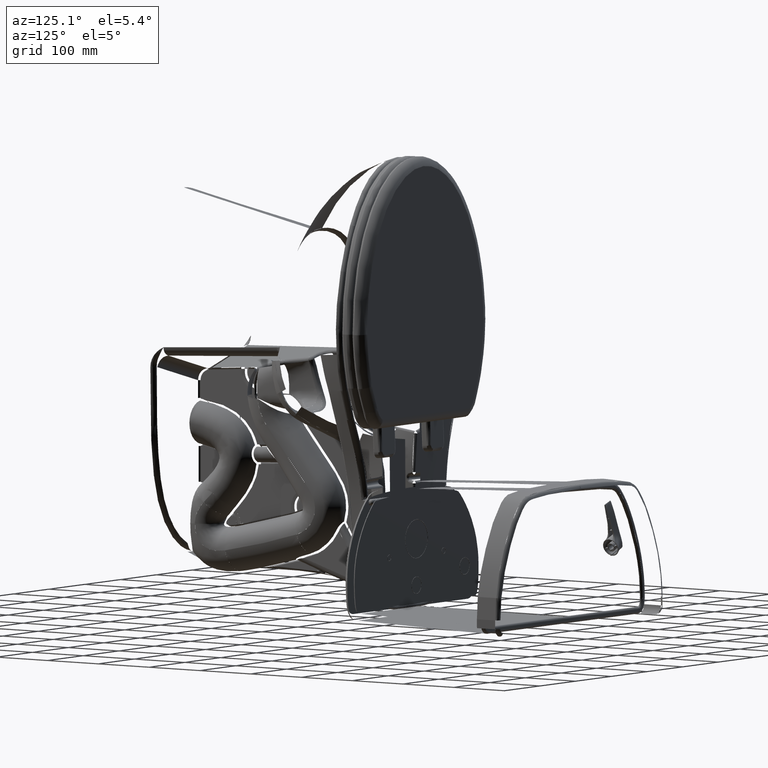
[diagram: clean part render]
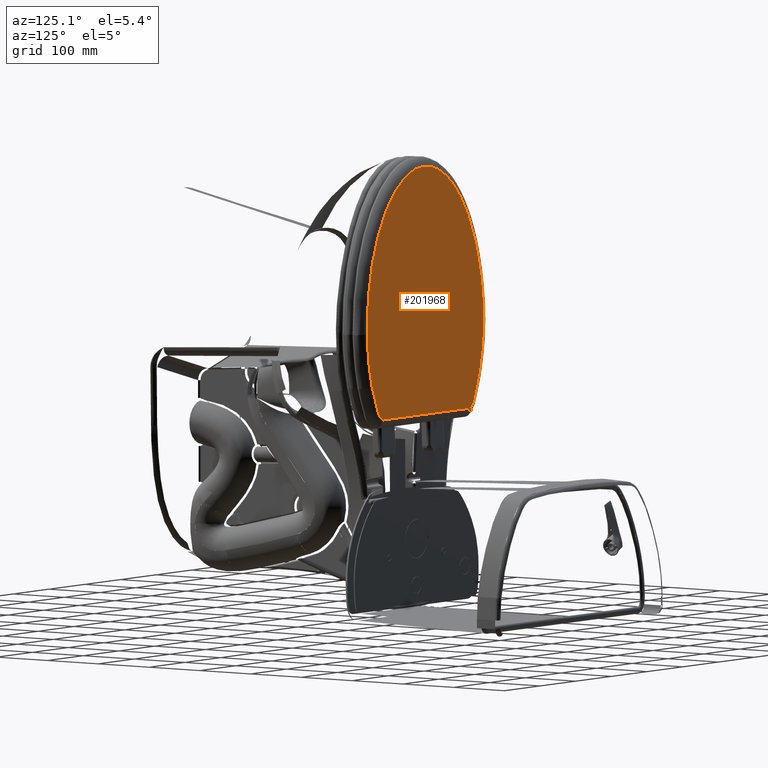
[diagram: same view with one face highlighted and labeled with its STEP entity id]
A machine part, auxiliary view. The second image highlights one B-rep face of the part: STEP entity #201968.
In plain terms, the highlighted planar face has unit normal (-0, -0.9999, -0.0102).
Its self-contained STEP definition (entity closure, byte-faithful):
#1264 =( BOUNDED_CURVE ( )  B_SPLINE_CURVE ( 3, ( #233270, #126699, #51369, #217350 ),
 .UNSPECIFIED., .F., .F. ) 
 B_SPLINE_CURVE_WITH_KNOTS ( ( 4, 4 ),
 ( 0.9997667374043239800, 1.000000000000000000 ),
 .UNSPECIFIED. ) 
 CURVE ( )  GEOMETRIC_REPRESENTATION_ITEM ( )  RATIONAL_B_SPLINE_CURVE ( ( 1.000000000000000000, 0.9999999996940360800, 0.9999999996940360800, 1.000000000000000000 ) ) 
 REPRESENTATION_ITEM ( '' )  );
#1397 = B_SPLINE_CURVE_WITH_KNOTS ( 'NONE', 3,
 ( #148863, #145712, #2817, #167127 ),
 .UNSPECIFIED., .F., .F.,
 ( 4, 4 ),
 ( 0.0000000000000000000, 1.000000000000000000 ),
 .UNSPECIFIED. ) ;
#1868 = EDGE_CURVE ( 'NONE', #143346, #15801, #88332, .T. ) ;
#2817 = CARTESIAN_POINT ( 'NONE',  ( 5.769628448364277200, 2.568445771210066100, 19.02174567300068700 ) ) ;
#3020 = CARTESIAN_POINT ( 'NONE',  ( 5.952506107053210400, 2.052552126661968000, 19.01648802116910300 ) ) ;
#3877 = CARTESIAN_POINT ( 'NONE',  ( 5.083454191896861700, -7.574328426499317100, 18.91846512556632800 ) ) ;
#4453 = EDGE_CURVE ( 'NONE', #36163, #204192, #15546, .T. ) ;
#4998 = ORIENTED_EDGE ( 'NONE', *, *, #85081, .F. ) ;
#5488 = CARTESIAN_POINT ( 'NONE',  ( -0.8032442826013103100, -11.44417204838209700, 18.87912856532446400 ) ) ;
#6061 = CARTESIAN_POINT ( 'NONE',  ( -5.348384407720300400, 3.568541212442836400, 19.03206473020582500 ) ) ;
#6266 = CARTESIAN_POINT ( 'NONE',  ( -1.608738143824917300, -11.19104613815908400, 18.88171606364971200 ) ) ;
#7845 = CARTESIAN_POINT ( 'NONE',  ( -6.419261071346667800, -1.982716662073309200, 18.97554696474046700 ) ) ;
#8385 = CARTESIAN_POINT ( 'NONE',  ( -5.333064504771924100, 3.602532342512641000, 19.03241068967876600 ) ) ;
#9391 = CARTESIAN_POINT ( 'NONE',  ( -6.199286134677389100, -3.991521913955331500, 18.95508777218869100 ) ) ;
#10046 = CARTESIAN_POINT ( 'NONE',  ( 5.321631965506299800, 3.645934108488425400, 19.03272290412008200 ) ) ;
#10645 = ORIENTED_EDGE ( 'NONE', *, *, #228302, .F. ) ;
#10867 = CARTESIAN_POINT ( 'NONE',  ( 5.952506107053210400, 2.052552126661968000, 19.01648802116910300 ) ) ;
#11350 = CARTESIAN_POINT ( 'NONE',  ( -4.981895713468325000, 4.277818294186403100, 19.03928313525188900 ) ) ;
#13938 = CARTESIAN_POINT ( 'NONE',  ( -5.574620086935848200, 3.061686811069244600, 19.02690597278524000 ) ) ;
#15477 = CARTESIAN_POINT ( 'NONE',  ( 5.325061428125590800, 3.634259758370039800, 19.03260397750708700 ) ) ;
#15546 = B_SPLINE_CURVE_WITH_KNOTS ( 'NONE', 3,
 ( #114942, #204816, #149144, #167418, #205597, #112577, #95905, #3877, #130854, #132429, #187316, #96668, #58644, #60224, #222259, #41988, #41207, #113371, #223047, #97468, #115739, #23716, #5488, #6266, #131632, #150726, #168984, #101403, #137168, #210398, #63335, #227778, #99839, #137938, #192826, #227006, #9391, #156240, #7845, #136375 ),
 .UNSPECIFIED., .F., .F.,
 ( 4, 2, 2, 2, 2, 2, 2, 2, 2, 2, 2, 2, 2, 2, 2, 2, 2, 2, 2, 4 ),
 ( 0.0000000000000000000, 0.06250000000000008300, 0.1250000000000001700, 0.1875000000000002500, 0.2500000000000003300, 0.2812500000000003300, 0.3125000000000002800, 0.3437500000000002800, 0.3750000000000002800, 0.4375000000000002200, 0.5000000000000002200, 0.5625000000000002200, 0.6250000000000001100, 0.6875000000000001100, 0.7187500000000002200, 0.7500000000000002200, 0.8125000000000002200, 0.8750000000000001100, 0.9375000000000001100, 1.000000000000000000 ),
 .UNSPECIFIED. ) ;
#15631 = CARTESIAN_POINT ( 'NONE',  ( -6.408510442966944600, -0.7357754000766926200, 18.98824496484606100 ) ) ;
#15801 = VERTEX_POINT ( 'NONE', #145154 ) ;
#16432 = CARTESIAN_POINT ( 'NONE',  ( -6.065169000130645700, 1.498886737633962500, 19.01099729303031400 ) ) ;
#17044 = CARTESIAN_POINT ( 'NONE',  ( 5.341984073981890000, 3.588720548625551600, 19.03214002637047400 ) ) ;
#19583 = CARTESIAN_POINT ( 'NONE',  ( -5.907491459720979800, 2.042496088792724200, 19.01653117662419500 ) ) ;
#22760 = CARTESIAN_POINT ( 'NONE',  ( -5.100078022989575500, 4.131027749024910100, 19.03778974438992600 ) ) ;
#22871 = CARTESIAN_POINT ( 'NONE',  ( 6.373134999565685600, -0.1509153861395486600, 18.99404517342820100 ) ) ;
#23716 = CARTESIAN_POINT ( 'NONE',  ( -0.3939903831591020600, -11.50816030424519100, 18.87847196154216800 ) ) ;
#28680 = FACE_OUTER_BOUND ( 'NONE', #76214, .T. ) ;
#30045 = CARTESIAN_POINT ( 'NONE',  ( 5.320272198442086900, 3.650597452639053700, 19.03277040948662700 ) ) ;
#30388 = EDGE_CURVE ( 'NONE', #181474, #82617, #1397, .T. ) ;
#33451 = CARTESIAN_POINT ( 'NONE',  ( 4.766747872944940000, 4.290244698799481800, 19.03929116595906700 ) ) ;
#33731 = CARTESIAN_POINT ( 'NONE',  ( 5.346880621916283400, 3.577598662333544100, 19.03202670786281600 ) ) ;
#36163 = VERTEX_POINT ( 'NONE', #90555 ) ;
#41207 = CARTESIAN_POINT ( 'NONE',  ( 2.616365496563414900, -10.62723032661137900, 18.88740618094357900 ) ) ;
#41909 = CARTESIAN_POINT ( 'NONE',  ( 6.433645643377164300, -1.272292894506294300, 18.98262497498202700 ) ) ;
#41988 = CARTESIAN_POINT ( 'NONE',  ( 2.805146153946501000, -10.48693364490353700, 18.88883258223198400 ) ) ;
#49483 = CARTESIAN_POINT ( 'NONE',  ( 5.236258497906924900, 3.938744065953688100, 19.03570575153659300 ) ) ;
#50426 = CARTESIAN_POINT ( 'NONE',  ( 5.335249529416535600, 3.604357669391890200, 19.03229934780590700 ) ) ;
#50852 = EDGE_CURVE ( 'NONE', #149173, #175893, #57139, .T. ) ;
#51180 = CARTESIAN_POINT ( 'NONE',  ( 5.344920519344095000, 3.582043203477716500, 19.03207199237756000 ) ) ;
#51369 = CARTESIAN_POINT ( 'NONE',  ( -5.907564949888818100, 2.042242781220262600, 19.01652859798096200 ) ) ;
#52731 = CARTESIAN_POINT ( 'NONE',  ( 5.328588994193307100, 3.622630492437992200, 19.03248550881102500 ) ) ;
#57139 = LINE ( 'NONE', #11350, #142385 ) ;
#58644 = CARTESIAN_POINT ( 'NONE',  ( 3.704410306001417300, -9.640906214808286000, 18.89743708524403200 ) ) ;
#60224 = CARTESIAN_POINT ( 'NONE',  ( 3.354386584699365700, -10.00767071829382900, 18.89370643011927300 ) ) ;
#60602 = CARTESIAN_POINT ( 'NONE',  ( -5.907491459720979800, 2.042496088792724200, 19.01653117662419500 ) ) ;
#62750 = PLANE ( 'NONE',  #91753 ) ;
#63335 = CARTESIAN_POINT ( 'NONE',  ( -4.321163164969016500, -8.810047497923148900, 18.90599581451408200 ) ) ;
#65387 = CARTESIAN_POINT ( 'NONE',  ( 5.320272198442086900, 3.650597452639053700, 19.03277040948662700 ) ) ;
#67711 = CARTESIAN_POINT ( 'NONE',  ( 5.039850663904768000, 4.165711020474836000, 19.03801944409731900 ) ) ;
#73239 = CARTESIAN_POINT ( 'NONE',  ( -5.355982829305115300, 3.551518037480539700, 19.03189146855625000 ) ) ;
#74260 = CARTESIAN_POINT ( 'NONE',  ( -4.843851034343106000, 4.277994260498322100, 19.03928281256225200 ) ) ;
#76214 = EDGE_LOOP ( 'NONE', ( #107381, #229110, #88604, #95166, #4998, #10645, #215493, #197673, #79090, #155836, #166096 ) ) ;
#79090 = ORIENTED_EDGE ( 'NONE', *, *, #1868, .F. ) ;
#82235 = CARTESIAN_POINT ( 'NONE',  ( 5.322317513653937100, 3.643585913509960400, 19.03269898310787400 ) ) ;
#82617 = VERTEX_POINT ( 'NONE', #10867 ) ;
#85081 = EDGE_CURVE ( 'NONE', #231237, #181474, #208350, .T. ) ;
#85318 = CARTESIAN_POINT ( 'NONE',  ( 5.320272198442086900, 3.650597452639053700, 19.03277040948662700 ) ) ;
#86246 = CARTESIAN_POINT ( 'NONE',  ( -6.359000109423954300, -0.1715307022060171300, 18.99399030427773000 ) ) ;
#88332 =( BOUNDED_CURVE ( )  B_SPLINE_CURVE ( 3, ( #133783, #6061, #152091, #8385 ),
 .UNSPECIFIED., .F., .F. ) 
 B_SPLINE_CURVE_WITH_KNOTS ( ( 4, 4 ),
 ( 0.9663879440670563000, 1.000000000000000000 ),
 .UNSPECIFIED. ) 
 CURVE ( )  GEOMETRIC_REPRESENTATION_ITEM ( )  RATIONAL_B_SPLINE_CURVE ( ( 1.000000000000000000, 0.9999980566912657400, 0.9999980566912657400, 1.000000000000000000 ) ) 
 REPRESENTATION_ITEM ( '' )  );
#88604 = ORIENTED_EDGE ( 'NONE', *, *, #111899, .F. ) ;
#89194 = CARTESIAN_POINT ( 'NONE',  ( 5.327159998196851400, 3.627275633761220400, 19.03253282965354400 ) ) ;
#90555 = CARTESIAN_POINT ( 'NONE',  ( 6.433645643377164300, -1.272292894506294300, 18.98262497498202700 ) ) ;
#91753 = AXIS2_PLACEMENT_3D ( 'NONE', #172340, #189861, #100809 ) ;
#95166 = ORIENTED_EDGE ( 'NONE', *, *, #30388, .F. ) ;
#95905 = CARTESIAN_POINT ( 'NONE',  ( 5.560779388407580900, -6.458996792670880900, 18.92981720599637500 ) ) ;
#96668 = CARTESIAN_POINT ( 'NONE',  ( 3.874203245506419300, -9.443625261396153500, 18.89944401272557800 ) ) ;
#97395 = CARTESIAN_POINT ( 'NONE',  ( 6.098684226257241800, 1.510667184525198700, 19.01096911410604000 ) ) ;
#97442 = CARTESIAN_POINT ( 'NONE',  ( 5.346880621916283400, 3.577598662333544100, 19.03202670786281600 ) ) ;
#97468 = CARTESIAN_POINT ( 'NONE',  ( 0.8350242434620407400, -11.44545439215001700, 18.87909555418266200 ) ) ;
#99340 =( BOUNDED_CURVE ( )  B_SPLINE_CURVE ( 3, ( #202238, #203831, #22760, #74260 ),
 .UNSPECIFIED., .F., .T. ) 
 B_SPLINE_CURVE_WITH_KNOTS ( ( 4, 4 ),
 ( 0.0000000000000000000, 1.000000000000000000 ),
 .UNSPECIFIED. ) 
 CURVE ( )  GEOMETRIC_REPRESENTATION_ITEM ( )  RATIONAL_B_SPLINE_CURVE ( ( 1.000000000000000000, 0.9411845459041755500, 0.9411845459041755500, 1.000000000000000000 ) ) 
 REPRESENTATION_ITEM ( '' )  );
#99839 = CARTESIAN_POINT ( 'NONE',  ( -5.047790495872628300, -7.590367863099725600, 18.91842517770166400 ) ) ;
#100809 = DIRECTION ( 'NONE',  ( 0.0000000000000000000, 0.9999481529806908400, 0.01018289499626042400 ) ) ;
#101403 = CARTESIAN_POINT ( 'NONE',  ( -3.666154697667838700, -9.646987732832894100, 18.89746492076030600 ) ) ;
#103609 = CARTESIAN_POINT ( 'NONE',  ( -5.355982829305115300, 3.551518037480539700, 19.03189146855625000 ) ) ;
#107381 = ORIENTED_EDGE ( 'NONE', *, *, #164827, .F. ) ;
#111899 = EDGE_CURVE ( 'NONE', #82617, #36163, #157813, .T. ) ;
#112577 = CARTESIAN_POINT ( 'NONE',  ( 5.765192526446172700, -5.862771883008284700, 18.93588632688737400 ) ) ;
#113371 = CARTESIAN_POINT ( 'NONE',  ( 2.040009530011741100, -11.00273565038368100, 18.88358927085274900 ) ) ;
#113449 =( BOUNDED_CURVE ( )  B_SPLINE_CURVE ( 3, ( #19583, #213336, #13938, #103609 ),
 .UNSPECIFIED., .F., .T. ) 
 B_SPLINE_CURVE_WITH_KNOTS ( ( 4, 4 ),
 ( 0.0000000000000000000, 0.9663879440670563000 ),
 .UNSPECIFIED. ) 
 CURVE ( )  GEOMETRIC_REPRESENTATION_ITEM ( )  RATIONAL_B_SPLINE_CURVE ( ( 1.000000000000000000, 0.9983942407032884200, 0.9983942407032884200, 1.000000000000000000 ) ) 
 REPRESENTATION_ITEM ( '' )  );
#114942 = CARTESIAN_POINT ( 'NONE',  ( 6.433645643377164300, -1.272292894506294300, 18.98262497498202700 ) ) ;
#115739 = CARTESIAN_POINT ( 'NONE',  ( 0.4251253650923825800, -11.50881577982505300, 18.87845531053615000 ) ) ;
#116311 = VERTEX_POINT ( 'NONE', #235280 ) ;
#122015 = CARTESIAN_POINT ( 'NONE',  ( -6.187328981597433500, 0.9458030117985222200, 19.00536649530157300 ) ) ;
#124178 = CARTESIAN_POINT ( 'NONE',  ( 5.340032971064960800, 3.593186129046811200, 19.03218552502756100 ) ) ;
#125728 = CARTESIAN_POINT ( 'NONE',  ( 5.337144926384645800, 3.599882515973346700, 19.03225375234134000 ) ) ;
#126699 = CARTESIAN_POINT ( 'NONE',  ( -5.907638432444409600, 2.041989471439683800, 19.01652601931526800 ) ) ;
#130854 = CARTESIAN_POINT ( 'NONE',  ( 4.810558774051206600, -8.093396986094504100, 18.91318255447060900 ) ) ;
#131632 = CARTESIAN_POINT ( 'NONE',  ( -2.005029648855670500, -11.00189116606256700, 18.88364713517426500 ) ) ;
#132429 = CARTESIAN_POINT ( 'NONE',  ( 4.359033136880133200, -8.799607715615643100, 18.90599641104346400 ) ) ;
#133783 = CARTESIAN_POINT ( 'NONE',  ( -5.355982829305115300, 3.551518037480539700, 19.03189146855625000 ) ) ;
#136375 = CARTESIAN_POINT ( 'NONE',  ( -6.421279189196843300, -1.300852907628501800, 18.98249069682578500 ) ) ;
#137168 = CARTESIAN_POINT ( 'NONE',  ( -3.835919019465054100, -9.450764594160372000, 18.89946521153629200 ) ) ;
#137815 = CARTESIAN_POINT ( 'NONE',  ( 5.320957980164172900, 3.648245387685236100, 19.03274644906220600 ) ) ;
#137938 = CARTESIAN_POINT ( 'NONE',  ( -5.528274895341163600, -6.479123780807351600, 18.92974729801370500 ) ) ;
#140386 = CARTESIAN_POINT ( 'NONE',  ( -6.421279189196843300, -1.300852907628501800, 18.98249069682578500 ) ) ;
#141100 = CARTESIAN_POINT ( 'NONE',  ( -6.421279189196843300, -1.300852907628501800, 18.98249069682578500 ) ) ;
#141720 = CARTESIAN_POINT ( 'NONE',  ( 5.323681233125197000, 3.638933416060472500, 19.03265158814960900 ) ) ;
#142385 = VECTOR ( 'NONE', #233825, 39.37007874015748100 ) ;
#142496 = CARTESIAN_POINT ( 'NONE',  ( 5.343934171227953600, 3.584281766702559500, 19.03209480062637800 ) ) ;
#142640 = CARTESIAN_POINT ( 'NONE',  ( -5.907711907250418700, 2.041736159411380300, 19.01652344062663500 ) ) ;
#143346 = VERTEX_POINT ( 'NONE', #73239 ) ;
#144728 = CARTESIAN_POINT ( 'NONE',  ( 4.766747872944940000, 4.290244698799481800, 19.03929116595906700 ) ) ;
#145154 = CARTESIAN_POINT ( 'NONE',  ( -5.333064504771924100, 3.602532342512641000, 19.03241068967876600 ) ) ;
#145712 = CARTESIAN_POINT ( 'NONE',  ( 5.567553507024518600, 3.077247470503669600, 19.02692873245329300 ) ) ;
#148863 = CARTESIAN_POINT ( 'NONE',  ( 5.346880621916283400, 3.577598662333544100, 19.03202670786281600 ) ) ;
#149144 = CARTESIAN_POINT ( 'NONE',  ( 6.391902643510708700, -2.634366037959460400, 18.96875491642698100 ) ) ;
#149173 = VERTEX_POINT ( 'NONE', #218945 ) ;
#150726 = CARTESIAN_POINT ( 'NONE',  ( -2.771453452777102200, -10.50347795487779300, 18.88873202199566500 ) ) ;
#152091 = CARTESIAN_POINT ( 'NONE',  ( -5.340744975424384800, 3.585546024571157500, 19.03223780435931900 ) ) ;
#155836 = ORIENTED_EDGE ( 'NONE', *, *, #205363, .F. ) ;
#156240 = CARTESIAN_POINT ( 'NONE',  ( -6.373827653768312700, -2.662396621754677300, 18.96862494291763900 ) ) ;
#157813 = B_SPLINE_CURVE_WITH_KNOTS ( 'NONE', 3,
 ( #3020, #97395, #185651, #22871, #168129, #41909 ),
 .UNSPECIFIED., .F., .F.,
 ( 4, 2, 4 ),
 ( 0.0000000000000000000, 0.5000000000000000000, 1.000000000000000000 ),
 .UNSPECIFIED. ) ;
#164827 = EDGE_CURVE ( 'NONE', #204192, #116311, #196798, .T. ) ;
#166096 = ORIENTED_EDGE ( 'NONE', *, *, #218275, .F. ) ;
#167127 = CARTESIAN_POINT ( 'NONE',  ( 5.952506107053210400, 2.052552126661968000, 19.01648802116910300 ) ) ;
#167418 = CARTESIAN_POINT ( 'NONE',  ( 6.222748733279753500, -3.965209289738631100, 18.95520443680912600 ) ) ;
#168129 = CARTESIAN_POINT ( 'NONE',  ( 6.420211507248377600, -0.7112004660338717700, 18.98833898012481600 ) ) ;
#168984 = CARTESIAN_POINT ( 'NONE',  ( -3.141558871009747300, -10.19416665022641600, 18.89188637735421500 ) ) ;
#172340 = CARTESIAN_POINT ( 'NONE',  ( -4.982648442755905000, 4.868338377179134600, 19.04529666020039600 ) ) ;
#175893 = VERTEX_POINT ( 'NONE', #33451 ) ;
#177455 = CARTESIAN_POINT ( 'NONE',  ( 5.345891962321260800, 3.579840337863110300, 19.03204954783386100 ) ) ;
#179029 = CARTESIAN_POINT ( 'NONE',  ( 5.330114070908267700, 3.618011667579882600, 19.03243845478976600 ) ) ;
#181474 = VERTEX_POINT ( 'NONE', #97442 ) ;
#185651 = CARTESIAN_POINT ( 'NONE',  ( 6.212371083594504700, 0.9600203427573625900, 19.00536025980751000 ) ) ;
#187316 = CARTESIAN_POINT ( 'NONE',  ( 4.201515411271494700, -9.022975633681412000, 18.90372367946670500 ) ) ;
#189861 = DIRECTION ( 'NONE',  ( -1.217842030133437500E-005, 0.01018289499550529200, -0.9999481529065378200 ) ) ;
#192826 = CARTESIAN_POINT ( 'NONE',  ( -5.734667485837818800, -5.884752385735438900, 18.93580254697367600 ) ) ;
#195777 = CARTESIAN_POINT ( 'NONE',  ( 5.324372888565355000, 3.636583328023898200, 19.03262764778543200 ) ) ;
#196798 = B_SPLINE_CURVE_WITH_KNOTS ( 'NONE', 3,
 ( #141100, #15631, #86246, #122015, #16432, #142640 ),
 .UNSPECIFIED., .F., .F.,
 ( 4, 2, 4 ),
 ( 0.0000000000000000000, 0.4998833687021619900, 0.9997667374043239800 ),
 .UNSPECIFIED. ) ;
#197673 = ORIENTED_EDGE ( 'NONE', *, *, #233516, .F. ) ;
#201968 = ADVANCED_FACE ( 'NONE', ( #28680 ), #62750, .F. ) ;
#202238 = CARTESIAN_POINT ( 'NONE',  ( -5.333064504771924100, 3.602532342512641000, 19.03241068967876600 ) ) ;
#203831 = CARTESIAN_POINT ( 'NONE',  ( -5.273339640627136200, 3.891803706839121800, 19.03535573494443500 ) ) ;
#204192 = VERTEX_POINT ( 'NONE', #140386 ) ;
#204816 = CARTESIAN_POINT ( 'NONE',  ( 6.434489726024349200, -1.954207253929638900, 18.97568074234649800 ) ) ;
#205363 = EDGE_CURVE ( 'NONE', #221705, #143346, #113449, .T. ) ;
#205597 = CARTESIAN_POINT ( 'NONE',  ( 6.096180019903511200, -4.615859418060255200, 18.94858013282670600 ) ) ;
#208350 = B_SPLINE_CURVE_WITH_KNOTS ( 'NONE', 4,
 ( #85318, #137815, #10046, #82235, #141720, #195777, #15477, #89194, #52731, #179029, #213346, #50426, #125728, #124178, #214850, #17044, #142496, #51180, #177455, #33731 ),
 .UNSPECIFIED., .F., .F.,
 ( 5, 3, 3, 3, 3, 3, 5 ),
 ( 0.0000000000000000000, 0.1250000000000000000, 0.2500000000000000000, 0.5000000000000000000, 0.7500000000000000000, 0.8750000000000000000, 1.000000000000000000 ),
 .UNSPECIFIED. ) ;
#210398 = CARTESIAN_POINT ( 'NONE',  ( -4.163424156577242700, -9.032294157667806200, 18.90373066167308400 ) ) ;
#213336 = CARTESIAN_POINT ( 'NONE',  ( -5.758751992654711500, 2.557870497849775900, 19.02177764071732800 ) ) ;
#213346 = CARTESIAN_POINT ( 'NONE',  ( 5.333444613388189200, 3.608874501970079000, 19.03234536660472300 ) ) ;
#214850 = CARTESIAN_POINT ( 'NONE',  ( 5.341001182527166200, 3.590964490657047000, 19.03216288935196900 ) ) ;
#215493 = ORIENTED_EDGE ( 'NONE', *, *, #50852, .F. ) ;
#217350 = CARTESIAN_POINT ( 'NONE',  ( -5.907491459720979800, 2.042496088792724200, 19.01653117662419500 ) ) ;
#218275 = EDGE_CURVE ( 'NONE', #116311, #221705, #1264, .T. ) ;
#218945 = CARTESIAN_POINT ( 'NONE',  ( -4.843851034343106000, 4.277994260498322100, 19.03928281256225200 ) ) ;
#221705 = VERTEX_POINT ( 'NONE', #60602 ) ;
#222259 = CARTESIAN_POINT ( 'NONE',  ( 3.174157545879268600, -10.17715402181244100, 18.89198270496561300 ) ) ;
#223047 = CARTESIAN_POINT ( 'NONE',  ( 1.642463630127653400, -11.19242571349346900, 18.88166241842469600 ) ) ;
#225301 =( BOUNDED_CURVE ( )  B_SPLINE_CURVE ( 3, ( #144728, #67711, #49483, #65387 ),
 .UNSPECIFIED., .F., .T. ) 
 B_SPLINE_CURVE_WITH_KNOTS ( ( 4, 4 ),
 ( 0.0000000000000000000, 1.000000000000000000 ),
 .UNSPECIFIED. ) 
 CURVE ( )  GEOMETRIC_REPRESENTATION_ITEM ( )  RATIONAL_B_SPLINE_CURVE ( ( 1.000000000000000000, 0.9394131836621652000, 0.9394131836621652000, 1.000000000000000000 ) ) 
 REPRESENTATION_ITEM ( '' )  );
#227006 = CARTESIAN_POINT ( 'NONE',  ( -6.070175914757030000, -4.640932205703348900, 18.94847298009171200 ) ) ;
#227778 = CARTESIAN_POINT ( 'NONE',  ( -4.773718319851907300, -8.107200132950154600, 18.91315871817587200 ) ) ;
#228302 = EDGE_CURVE ( 'NONE', #175893, #231237, #225301, .T. ) ;
#229110 = ORIENTED_EDGE ( 'NONE', *, *, #4453, .F. ) ;
#231237 = VERTEX_POINT ( 'NONE', #30045 ) ;
#233270 = CARTESIAN_POINT ( 'NONE',  ( -5.907711907250418700, 2.041736159411380300, 19.01652344062663500 ) ) ;
#233516 = EDGE_CURVE ( 'NONE', #15801, #149173, #99340, .T. ) ;
#233825 = DIRECTION ( 'NONE',  ( 0.9999991875954056300, 0.001274679522972517200, 8.015588863026252000E-007 ) ) ;
#235280 = CARTESIAN_POINT ( 'NONE',  ( -5.907711907250418700, 2.041736159411380300, 19.01652344062663500 ) ) ;